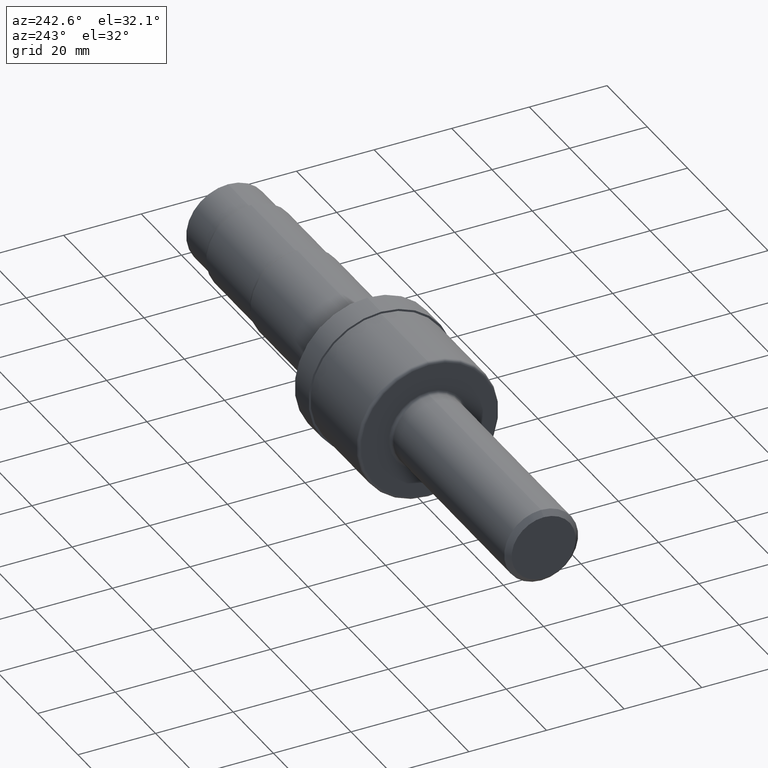
[diagram: clean part render]
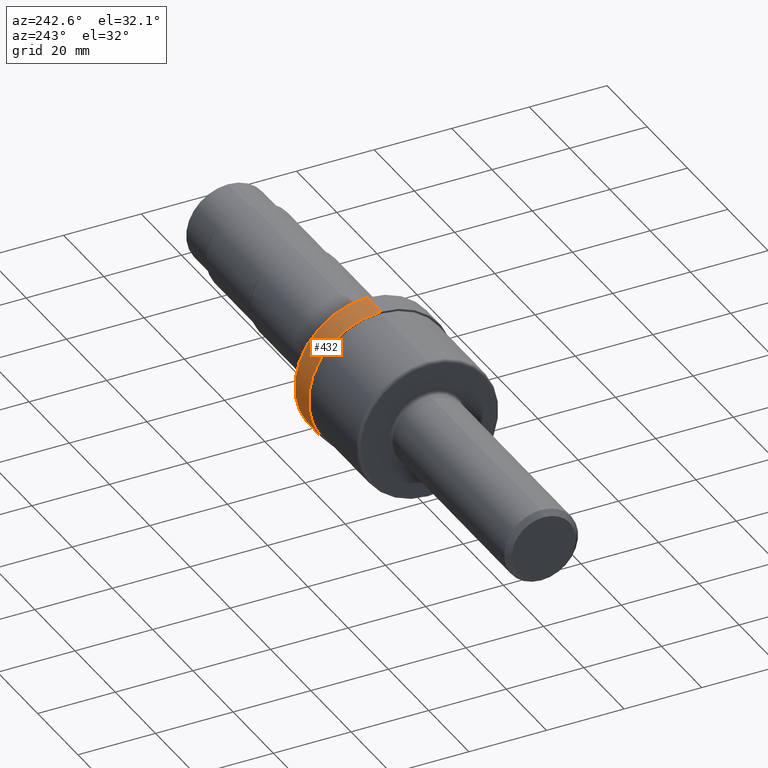
[diagram: same view with one face highlighted and labeled with its STEP entity id]
A machine part, auxiliary view. The second image highlights one B-rep face of the part: STEP entity #432.
In plain terms, the highlighted cylindrical surface (partial cylindrical patch) has radius 18.7325 mm, axis along (-1, -0, -0).
Its self-contained STEP definition (entity closure, byte-faithful):
#38 = CARTESIAN_POINT ( 'NONE',  ( 0.0000000000000000000, 0.0000000000000000000, 0.0000000000000000000 ) ) ;
#57 = DIRECTION ( 'NONE',  ( -1.000000000000000000, -0.0000000000000000000, -0.0000000000000000000 ) ) ;
#80 = VERTEX_POINT ( 'NONE', #321 ) ;
#107 = ORIENTED_EDGE ( 'NONE', *, *, #303, .F. ) ;
#138 = CARTESIAN_POINT ( 'NONE',  ( 3.180000000000000604, 0.0000000000000000000, 0.0000000000000000000 ) ) ;
#154 = FACE_OUTER_BOUND ( 'NONE', #804, .T. ) ;
#169 = CIRCLE ( 'NONE', #185, 0.7374999999999999334 ) ;
#185 = AXIS2_PLACEMENT_3D ( 'NONE', #877, #435, #204 ) ;
#204 = DIRECTION ( 'NONE',  ( 0.0000000000000000000, 0.0000000000000000000, 1.000000000000000000 ) ) ;
#210 = DIRECTION ( 'NONE',  ( 0.0000000000000000000, 0.0000000000000000000, 1.000000000000000000 ) ) ;
#229 = CIRCLE ( 'NONE', #697, 0.7374999999999999334 ) ;
#231 = DIRECTION ( 'NONE',  ( -1.000000000000000000, -0.0000000000000000000, -0.0000000000000000000 ) ) ;
#241 = VERTEX_POINT ( 'NONE', #883 ) ;
#259 = ORIENTED_EDGE ( 'NONE', *, *, #468, .T. ) ;
#283 = CARTESIAN_POINT ( 'NONE',  ( 3.450000000000000622, 0.0000000000000000000, 0.7374999999999999334 ) ) ;
#303 = EDGE_CURVE ( 'NONE', #680, #80, #602, .T. ) ;
#308 = DIRECTION ( 'NONE',  ( 0.0000000000000000000, 0.0000000000000000000, 1.000000000000000000 ) ) ;
#312 = LINE ( 'NONE', #520, #333 ) ;
#321 = CARTESIAN_POINT ( 'NONE',  ( 3.180000000000000604, 0.0000000000000000000, 0.7374999999999999334 ) ) ;
#333 = VECTOR ( 'NONE', #57, 39.37007874015748143 ) ;
#342 = AXIS2_PLACEMENT_3D ( 'NONE', #38, #886, #308 ) ;
#432 = ADVANCED_FACE ( 'NONE', ( #154 ), #535, .T. ) ;
#435 = DIRECTION ( 'NONE',  ( -1.000000000000000000, -0.0000000000000000000, -0.0000000000000000000 ) ) ;
#468 = EDGE_CURVE ( 'NONE', #241, #699, #312, .T. ) ;
#510 = CARTESIAN_POINT ( 'NONE',  ( 0.0000000000000000000, 0.0000000000000000000, 0.7374999999999999334 ) ) ;
#520 = CARTESIAN_POINT ( 'NONE',  ( 0.0000000000000000000, 9.031770143711730242E-17, -0.7374999999999999334 ) ) ;
#535 = CYLINDRICAL_SURFACE ( 'NONE', #342, 0.7374999999999999334 ) ;
#550 = CARTESIAN_POINT ( 'NONE',  ( 3.180000000000000604, 9.031770143711730242E-17, -0.7374999999999999334 ) ) ;
#602 = LINE ( 'NONE', #510, #913 ) ;
#680 = VERTEX_POINT ( 'NONE', #283 ) ;
#697 = AXIS2_PLACEMENT_3D ( 'NONE', #138, #231, #210 ) ;
#699 = VERTEX_POINT ( 'NONE', #550 ) ;
#702 = EDGE_CURVE ( 'NONE', #80, #699, #229, .T. ) ;
#705 = ORIENTED_EDGE ( 'NONE', *, *, #702, .F. ) ;
#734 = EDGE_CURVE ( 'NONE', #680, #241, #169, .T. ) ;
#804 = EDGE_LOOP ( 'NONE', ( #848, #259, #705, #107 ) ) ;
#848 = ORIENTED_EDGE ( 'NONE', *, *, #734, .T. ) ;
#877 = CARTESIAN_POINT ( 'NONE',  ( 3.450000000000000622, 0.0000000000000000000, 0.0000000000000000000 ) ) ;
#883 = CARTESIAN_POINT ( 'NONE',  ( 3.450000000000000622, 9.031770143711730242E-17, -0.7374999999999999334 ) ) ;
#886 = DIRECTION ( 'NONE',  ( -1.000000000000000000, -0.0000000000000000000, -0.0000000000000000000 ) ) ;
#913 = VECTOR ( 'NONE', #931, 39.37007874015748143 ) ;
#931 = DIRECTION ( 'NONE',  ( -1.000000000000000000, -0.0000000000000000000, -0.0000000000000000000 ) ) ;